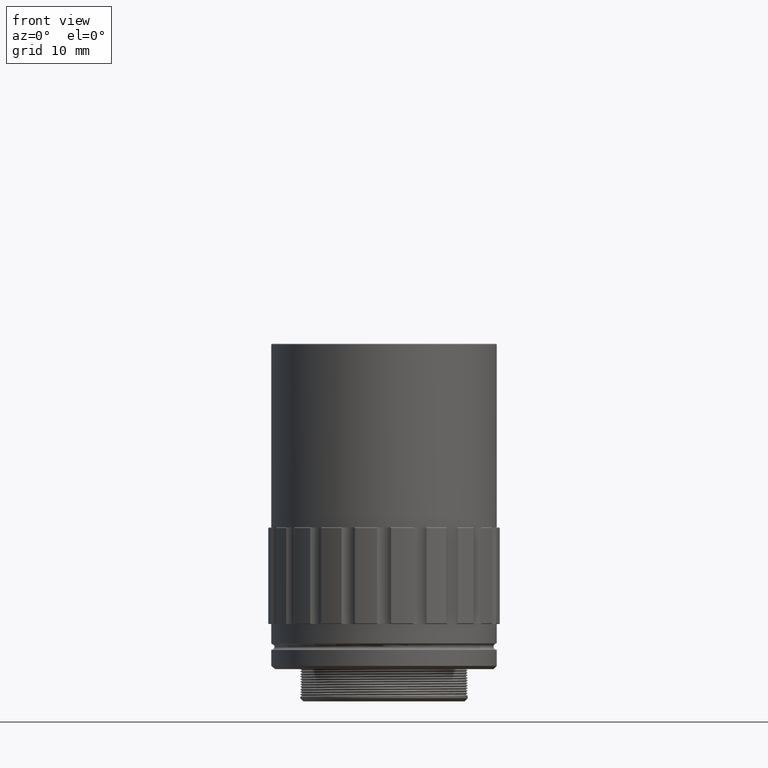
[diagram: clean part render]
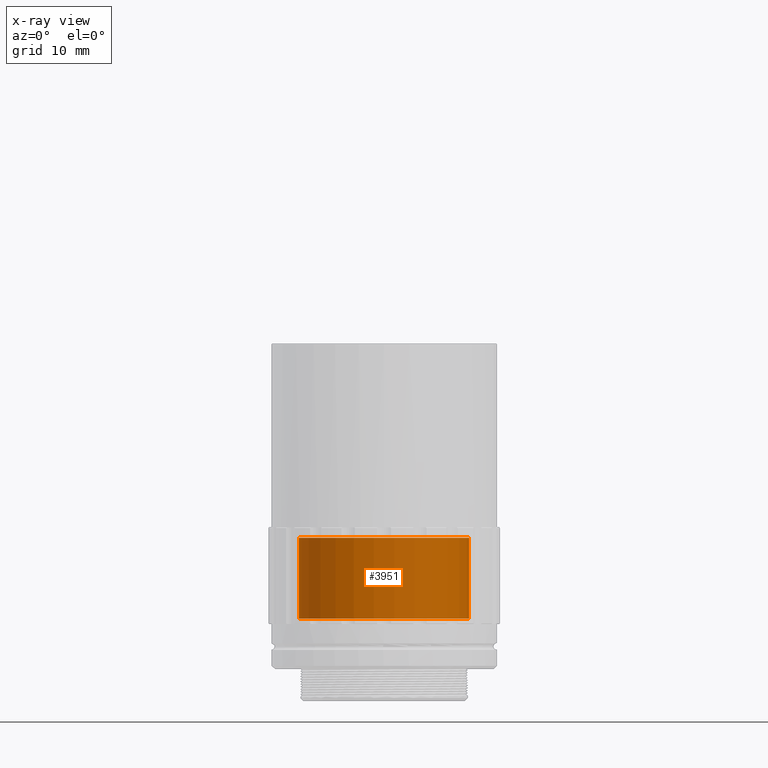
[diagram: x-ray — body ghosted, one internal face saturated and labeled with its STEP entity id]
A machine part, front view, then the same camera in x-ray: the body is ghosted and one INTERNAL B-rep face — a face not visible from any outside direction — is saturated and labeled: STEP entity #3951.
In plain terms, the highlighted cylindrical surface (bore or boss wall) has radius 13.2 mm, axis along (0, 0, -1).
Its self-contained STEP definition (entity closure, byte-faithful):
#44 = CARTESIAN_POINT ( 'NONE',  ( -1.304303365396259191E-17, 0.000000000000000000, 24.86435827116999064 ) ) ;
#80 = CYLINDRICAL_SURFACE ( 'NONE', #4834, 13.19999999999999929 ) ;
#339 = EDGE_LOOP ( 'NONE', ( #5234 ) ) ;
#658 = DIRECTION ( 'NONE',  ( 0.000000000000000000, 0.000000000000000000, -1.000000000000000000 ) ) ;
#732 = CIRCLE ( 'NONE', #2262, 13.20000000000001172 ) ;
#945 = DIRECTION ( 'NONE',  ( -1.000000000000000000, 0.000000000000000000, 0.000000000000000000 ) ) ;
#1560 = EDGE_LOOP ( 'NONE', ( #4686 ) ) ;
#2262 = AXIS2_PLACEMENT_3D ( 'NONE', #44, #2791, #2701 ) ;
#2701 = DIRECTION ( 'NONE',  ( 1.000000000000000000, 0.000000000000000000, 0.000000000000000000 ) ) ;
#2791 = DIRECTION ( 'NONE',  ( 1.304303365396096427E-16, -0.000000000000000000, 1.000000000000000000 ) ) ;
#3136 = CARTESIAN_POINT ( 'NONE',  ( -13.19999999999999929, 0.000000000000000000, 12.36435827117000130 ) ) ;
#3951 = ADVANCED_FACE ( 'NONE', ( #5933, #6054 ), #80, .F. ) ;
#4114 = CIRCLE ( 'NONE', #7213, 13.19999999999999929 ) ;
#4432 = EDGE_CURVE ( 'NONE', #7750, #7750, #4114, .T. ) ;
#4631 = CARTESIAN_POINT ( 'NONE',  ( 0.000000000000000000, 0.000000000000000000, 57.13178208643999767 ) ) ;
#4686 = ORIENTED_EDGE ( 'NONE', *, *, #4432, .F. ) ;
#4834 = AXIS2_PLACEMENT_3D ( 'NONE', #4631, #658, #5314 ) ;
#4836 = CARTESIAN_POINT ( 'NONE',  ( 13.20000000000001172, 0.000000000000000000, 24.86435827116999064 ) ) ;
#4964 = VERTEX_POINT ( 'NONE', #4836 ) ;
#5234 = ORIENTED_EDGE ( 'NONE', *, *, #8659, .T. ) ;
#5314 = DIRECTION ( 'NONE',  ( -1.000000000000000000, 0.000000000000000000, 0.000000000000000000 ) ) ;
#5933 = FACE_OUTER_BOUND ( 'NONE', #339, .T. ) ;
#6054 = FACE_OUTER_BOUND ( 'NONE', #1560, .T. ) ;
#6264 = DIRECTION ( 'NONE',  ( -0.000000000000000000, -0.000000000000000000, 1.000000000000000000 ) ) ;
#7017 = CARTESIAN_POINT ( 'NONE',  ( 0.000000000000000000, 0.000000000000000000, 12.36435827117000130 ) ) ;
#7213 = AXIS2_PLACEMENT_3D ( 'NONE', #7017, #6264, #945 ) ;
#7750 = VERTEX_POINT ( 'NONE', #3136 ) ;
#8659 = EDGE_CURVE ( 'NONE', #4964, #4964, #732, .T. ) ;